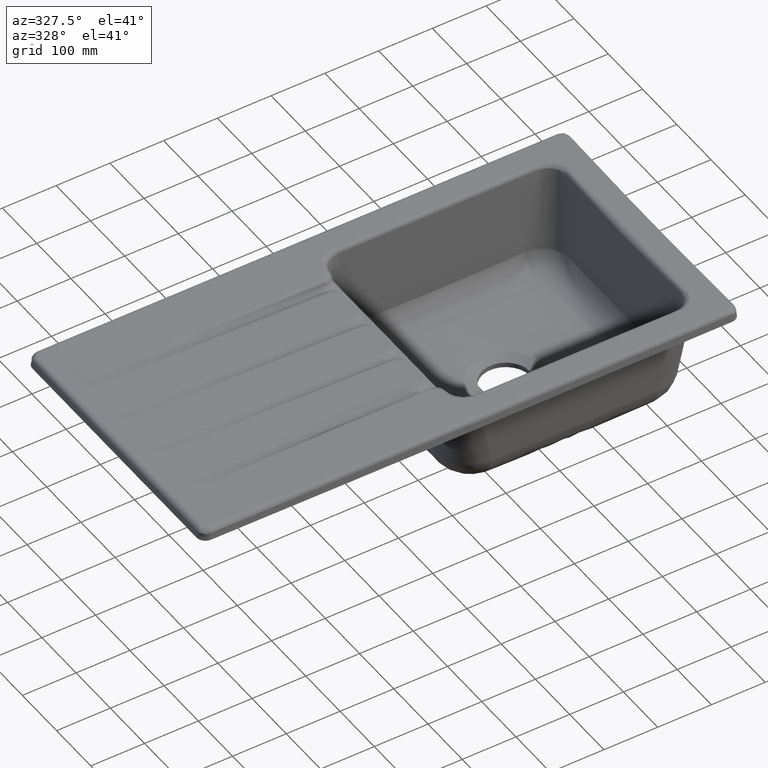
[diagram: clean part render]
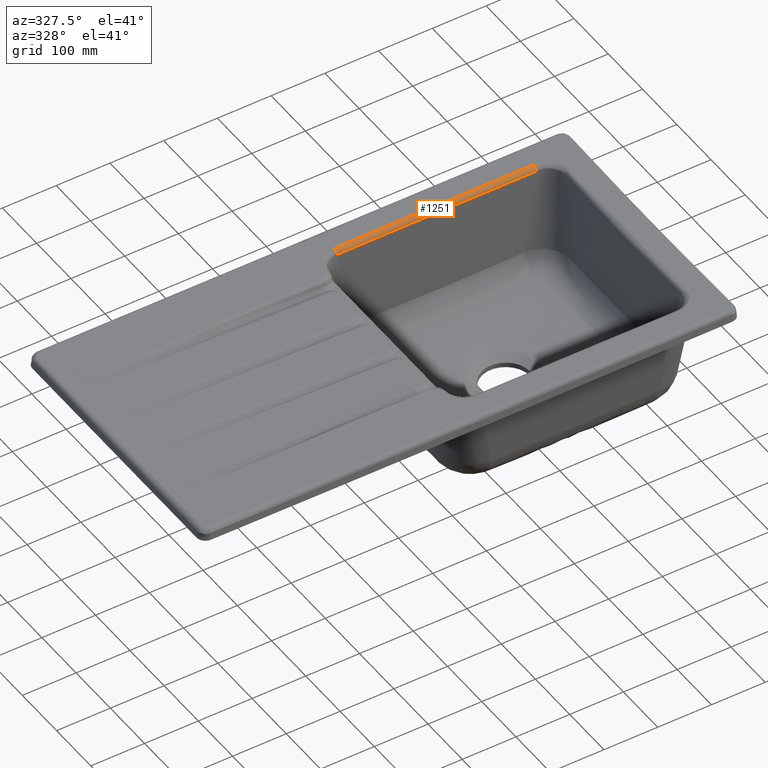
[diagram: same view with one face highlighted and labeled with its STEP entity id]
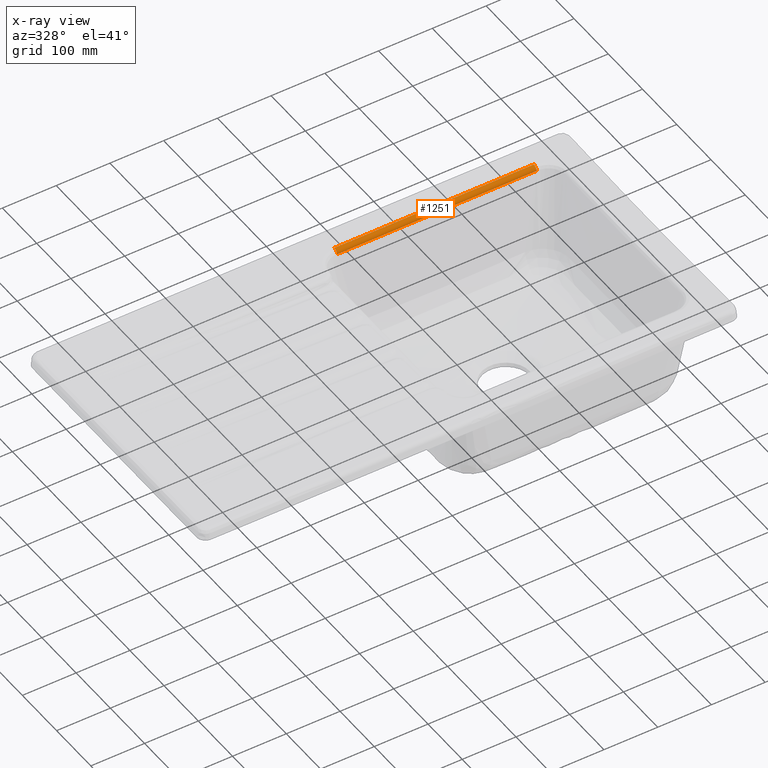
[diagram: x-ray of the same camera — body ghosted, the highlighted face saturated]
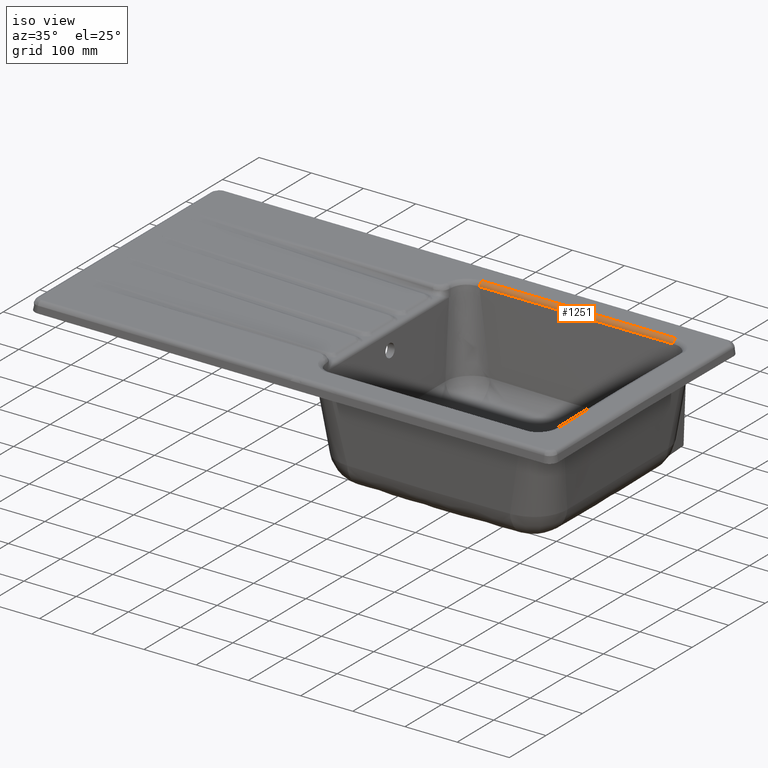
[diagram: same view with one face highlighted and labeled with its STEP entity id]
A machine part, auxiliary view. The second image highlights one B-rep face of the part: STEP entity #1251.
The next image is the same camera in x-ray: the body ghosted, the highlighted face saturated — about 0% of this face is hidden behind the body in this view.
A second angle (iso view) of the same face is appended — the face is thin or edge-on in the first view.
In plain terms, the highlighted cylindrical surface (edge-blend (fillet) strip) has radius 8 mm, axis along (1, 0, 0).
Its self-contained STEP definition (entity closure, byte-faithful):
#449=CYLINDRICAL_SURFACE('',#6871,8.);
#563=CIRCLE('',#6825,8.);
#598=CIRCLE('',#6870,8.);
#832=LINE('',#13932,#1000);
#1000=VECTOR('',#7446,1.);
#1251=ADVANCED_FACE('',(#1781),#449,.T.);
#1781=FACE_OUTER_BOUND('',#2225,.T.);
#2225=EDGE_LOOP('',(#3121,#3122,#3123,#3124));
#3121=ORIENTED_EDGE('',*,*,#5555,.F.);
#3122=ORIENTED_EDGE('',*,*,#5556,.F.);
#3123=ORIENTED_EDGE('',*,*,#5434,.T.);
#3124=ORIENTED_EDGE('',*,*,#5486,.T.);
#4751=VERTEX_POINT('',#10679);
#4780=VERTEX_POINT('',#11447);
#4801=VERTEX_POINT('',#12293);
#4838=VERTEX_POINT('',#13931);
#5434=EDGE_CURVE('',#4780,#4751,#563,.T.);
#5486=EDGE_CURVE('',#4751,#4801,#6412,.T.);
#5555=EDGE_CURVE('',#4838,#4801,#598,.T.);
#5556=EDGE_CURVE('',#4780,#4838,#832,.T.);
#6412=B_SPLINE_CURVE_WITH_KNOTS('',3,(#12294,#12295,#12296,#12297),
 .UNSPECIFIED.,.F.,.F.,(4,4),(0.,1.),.UNSPECIFIED.);
#6825=AXIS2_PLACEMENT_3D('',#11446,#7343,#7344);
#6870=AXIS2_PLACEMENT_3D('',#13930,#7444,#7445);
#6871=AXIS2_PLACEMENT_3D('',#13933,#7447,#7448);
#7343=DIRECTION('',(-1.,-6.96539935135067E-15,0.));
#7344=DIRECTION('',(-6.93889390390723E-15,1.,0.));
#7444=DIRECTION('',(-1.,8.70674918918834E-16,0.));
#7445=DIRECTION('',(8.67361737988404E-16,1.,0.));
#7446=DIRECTION('',(-1.,-6.30808536718839E-17,-3.06836990813488E-34));
#7447=DIRECTION('',(1.,6.30808536718839E-17,0.));
#7448=DIRECTION('',(1.0842021724855E-16,-1.,0.));
#10679=CARTESIAN_POINT('',(412.642079819298,209.330649392139,0.));
#11446=CARTESIAN_POINT('',(412.642079819298,209.330649392139,-8.));
#11447=CARTESIAN_POINT('',(412.642079819299,201.361091807406,-7.30275405801778));
#12293=CARTESIAN_POINT('',(41.3579283575772,209.33061053298,0.00161545272143282));
#12294=CARTESIAN_POINT('',(412.642079819298,209.330649392139,0.));
#12295=CARTESIAN_POINT('',(288.880693273099,209.33064939214,0.));
#12296=CARTESIAN_POINT('',(165.1193067269,209.33064939214,0.));
#12297=CARTESIAN_POINT('',(41.3579201807007,209.33064939214,0.));
#13930=CARTESIAN_POINT('',(41.3579201807008,209.330649392139,-8.));
#13931=CARTESIAN_POINT('',(41.3579201807008,201.361091807406,-7.30275405801883));
#13932=CARTESIAN_POINT('',(39.8744250370272,201.361091807406,-7.30275405801873));
#13933=CARTESIAN_POINT('',(6.9999999999996,209.330649392139,-8.));